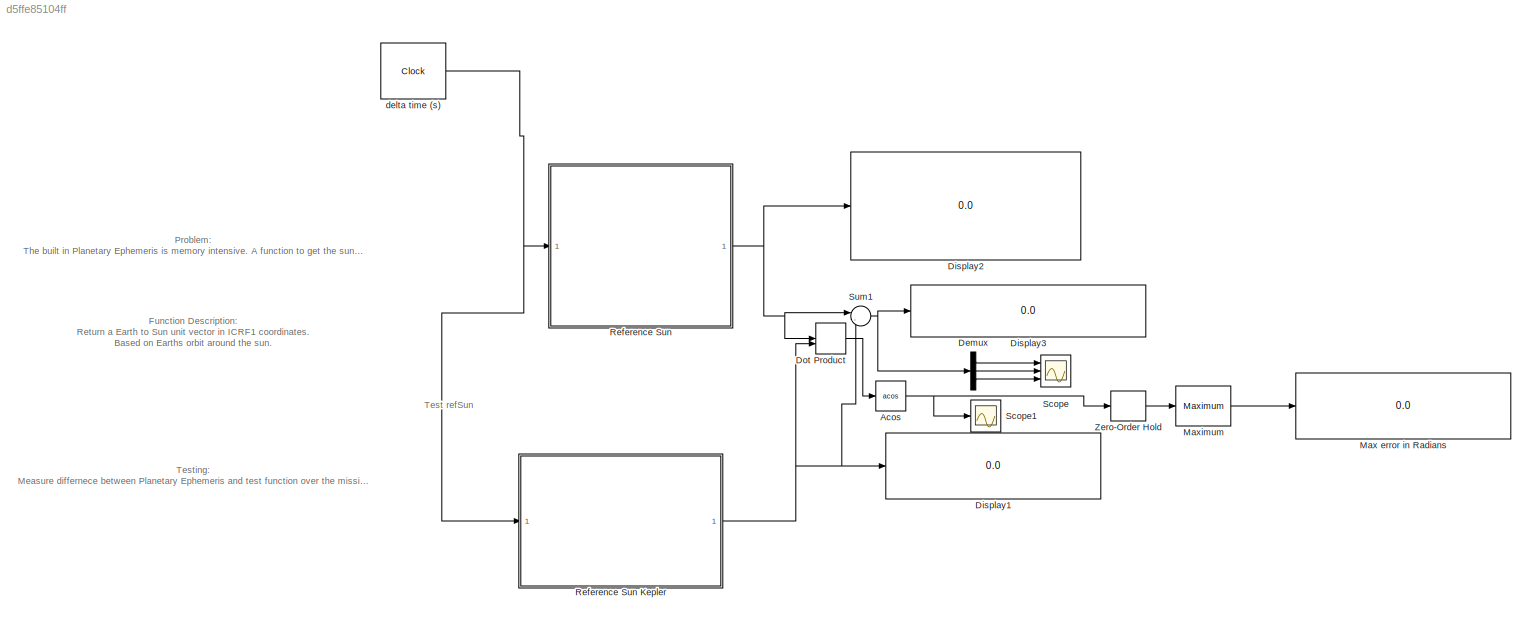
MODEL slx_d5ffe85104ff
KIND model
CONFIG AbsTol = auto
CONFIG EnableMultiTasking = off
CONFIG FixedStep = 1000
CONFIG MaxStep = auto
CONFIG MinStep = auto
CONFIG RelTol = 1e-3
CONFIG SampleTimeConstraint = Unconstrained
CONFIG Solver = FixedStepDiscrete
CONFIG SolverName = FixedStepDiscrete
CONFIG StartTime = 0
CONFIG StopTime = init.S_T*20
BLOCK [Trigonometry] Acos
  Operator = acos
  Ports = [1, 1]
BLOCK [Demux] Demux
  DisplayOption = bar
  Outputs = 3
  Ports = [1, 3]
BLOCK [Display] Display1
  Decimation = 1
  Ports = [1]
BLOCK [Display] Display2
  Decimation = 1
  Format = long
  Ports = [1]
BLOCK [Display] Display3
  Decimation = 1
  Ports = [1]
BLOCK [DotProduct] Dot Product
  OutDataTypeStr = Inherit: Inherit via internal rule
BLOCK [Display] Max error in Radians
  Decimation = 1
  Ports = [1]
BLOCK [Reference] Maximum  REF=dspstat3/Maximum
  Ports = [1, 1]
  SourceBlock = dspstat3/Maximum
  SourceProductBaseCode = DS
  SourceProductName = DSP System Toolbox
  SourceType = Maximum
  UserDataPersistent = on
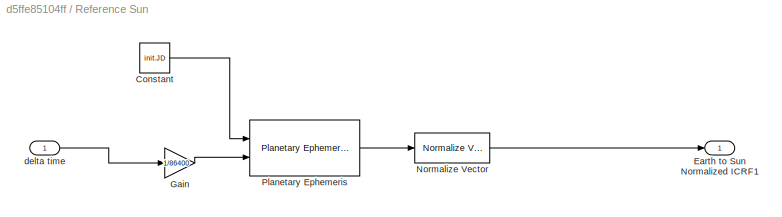
BLOCK [SubSystem] Reference Sun 
  Ports = [1, 1]
  RequestExecContextInheritance = off
BLOCK [Constant] Reference Sun /Constant
  Value = init.JD
BLOCK [Outport] Reference Sun /Earth to Sun Normalized ICRF1
  IconDisplay = Port number
BLOCK [Gain] Reference Sun /Gain
  Gain = 1/86400
  OutDataTypeStr = Inherit: Inherit via internal rule
  ParamDataTypeStr = Inherit: Inherit via internal rule
  SaturateOnIntegerOverflow = off
BLOCK [Reference] Reference Sun /Normalize Vector  REF=vrlib/Utilities/Normalize Vector
  Ports = [1, 1]
  SourceBlock = vrlib/Utilities/Normalize Vector
  SourceProductBaseCode = VR
  SourceProductName = Simulink 3D Animation
  SourceType = Normalize Vector
BLOCK [Reference] Reference Sun /Planetary Ephemeris  REF=aerolibcelestial/Planetary Ephemeris
  Ports = [2, 1]
  SourceBlock = aerolibcelestial/Planetary Ephemeris
  SourceProductBaseCode = AE
  SourceProductName = Aerospace Blockset
  SourceType = PlanetaryEphemeris
BLOCK [Inport] Reference Sun /delta time
  IconDisplay = Port number
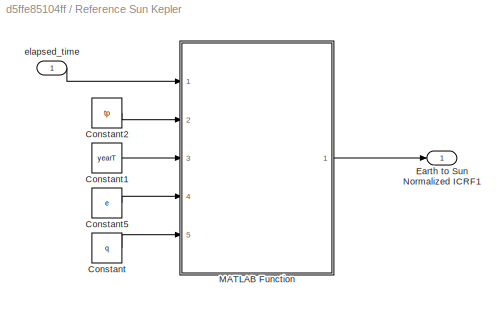
BLOCK [SubSystem] Reference Sun Kepler
  Ports = [1, 1]
  RequestExecContextInheritance = off
BLOCK [Constant] Reference Sun Kepler/Constant
  Value = q
BLOCK [Constant] Reference Sun Kepler/Constant1
  Value = yearT
BLOCK [Constant] Reference Sun Kepler/Constant2
  Value = tp
BLOCK [Constant] Reference Sun Kepler/Constant5
  Value = e
BLOCK [Outport] Reference Sun Kepler/Earth to Sun Normalized ICRF1
  IconDisplay = Port number
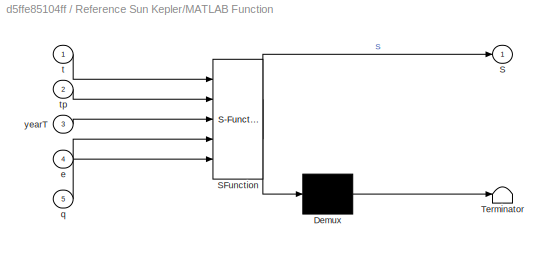
BLOCK [SubSystem] Reference Sun Kepler/MATLAB Function
  ErrorFcn = Stateflow.Translate.translate
  PermitHierarchicalResolution = ExplicitOnly
  Ports = [5, 1]
  RequestExecContextInheritance = off
  SFBlockType = MATLAB Function
  TreatAsAtomicUnit = on
BLOCK [Demux] Reference Sun Kepler/MATLAB Function/ Demux 
  Outputs = 1
  Ports = [1, 1]
BLOCK [S-Function] Reference Sun Kepler/MATLAB Function/ SFunction 
  EnableBusSupport = on
  FunctionName = sf_sfun
  PortCounts = [5 2]
  Ports = [5, 2]
  SFcnIsStateOwnerBlock = off
  SFunctionDeploymentMode = off
  Tag = Stateflow S-Function refSuntest 2
BLOCK [Terminator] Reference Sun Kepler/MATLAB Function/ Terminator 
BLOCK [Outport] Reference Sun Kepler/MATLAB Function/S
  IconDisplay = Port number
BLOCK [Inport] Reference Sun Kepler/MATLAB Function/e
  IconDisplay = Port number
  Port = 4
BLOCK [Inport] Reference Sun Kepler/MATLAB Function/q
  IconDisplay = Port number
  Port = 5
BLOCK [Inport] Reference Sun Kepler/MATLAB Function/t
  IconDisplay = Port number
BLOCK [Inport] Reference Sun Kepler/MATLAB Function/tp
  IconDisplay = Port number
  Port = 2
BLOCK [Inport] Reference Sun Kepler/MATLAB Function/yearT
  IconDisplay = Port number
  Port = 3
BLOCK [Inport] Reference Sun Kepler/elapsed_time
  IconDisplay = Port number
BLOCK [Scope] Scope
  Floating = off
  NumInputPorts = 3
  Ports = [3]
  ScopeSpecificationString = Simulink.scopes.TimeScopeBlockCfg('CurrentConfiguration', extmgr.ConfigurationSet(extmgr.Configuration('Core','General UI',true),extmgr.Configuration('Core','Source UI',true),extmgr.Configuration('Sources','WiredSimulink',true),extmgr.Configuration('Visuals','Time Domain',true,'SerializedDisplays',{struct('MinYLimReal','-0.00025','MaxYLimReal','0.00069','YLabelReal','','MinYLimMag','0.00000','MaxY...<+2750ch>
BLOCK [Scope] Scope1
  Floating = off
  NumInputPorts = 1
  Ports = [1]
  ScopeSpecificationString = Simulink.scopes.TimeScopeBlockCfg('CurrentConfiguration', extmgr.ConfigurationSet(extmgr.Configuration('Core','General UI',true),extmgr.Configuration('Core','Source UI',true),extmgr.Configuration('Sources','WiredSimulink',true,'DataLoggingVariableName','ScopeData1'),extmgr.Configuration('Visuals','Time Domain',true,'SerializedDisplays',{struct('MinYLimReal','-0.00008','MaxYLimReal','0.00078','YLab...<+1363ch>
BLOCK [Sum] Sum1
  IconShape = round
  InputSameDT = off
  Inputs = |-+
  OutDataTypeStr = Inherit: Inherit via internal rule
  Ports = [2, 1]
  SaturateOnIntegerOverflow = off
BLOCK [ZeroOrderHold] Zero-Order Hold
  SampleTime = -1
BLOCK [Clock] delta time (s)
  DisplayTime = on
ANNOTATION (root): Function Description: Return a Earth to Sun unit vector in ICRF1 coordinates. Based on Earths orbit around the sun.
ANNOTATION (root): Problem: The built in Planetary Ephemeris is memory intensive. A function to get the sun to earth refernce vector need to be tested to ensure accuracy and memory
ANNOTATION (root): Testing: Measure differnece between Planetary Ephemeris and test function over the mission timeline, all errors should be much less than one dergree off.
ANNOTATION (root): Test refSun
NET Acos:1 -> Scope1:1, Zero-Order Hold:1
LINE Demux:1 -> Scope:1
LINE Demux:2 -> Scope:2
LINE Demux:3 -> Scope:3
LINE Dot Product:1 -> Acos:1
LINE Maximum:1 -> Max error in Radians:1
LINE Reference Sun /Constant:1 -> Reference Sun /Planetary Ephemeris:1
LINE Reference Sun /Gain:1 -> Reference Sun /Planetary Ephemeris:2
LINE Reference Sun /Normalize Vector:1 -> Reference Sun /Earth to Sun Normalized ICRF1:1
LINE Reference Sun /Planetary Ephemeris:1 -> Reference Sun /Normalize Vector:1
LINE Reference Sun /delta time:1 -> Reference Sun /Gain:1
NET Reference Sun :1 -> Display2:1, Dot Product:1, Sum1:1
LINE Reference Sun Kepler/Constant1:1 -> Reference Sun Kepler/MATLAB Function:3
LINE Reference Sun Kepler/Constant2:1 -> Reference Sun Kepler/MATLAB Function:2
LINE Reference Sun Kepler/Constant5:1 -> Reference Sun Kepler/MATLAB Function:4
LINE Reference Sun Kepler/Constant:1 -> Reference Sun Kepler/MATLAB Function:5
LINE Reference Sun Kepler/MATLAB Function:1 -> Reference Sun Kepler/Earth to Sun Normalized ICRF1:1
LINE Reference Sun Kepler/elapsed_time:1 -> Reference Sun Kepler/MATLAB Function:1
NET Reference Sun Kepler:1 -> Display1:1, Dot Product:2, Sum1:2
NET Sum1:1 -> Demux:1, Display3:1
LINE Zero-Order Hold:1 -> Maximum:1
NET delta time (s):1 -> Reference Sun :1, Reference Sun Kepler:1
note: NET lines group one-source signal fan-out (src -> all destinations, sorted); 1:1 wires keep LINE
CHART Reference Sun Kepler/MATLAB Function states=1 transitions=1
  STATE_LABEL 'eML_blk_kernel()'
  STATE_LABEL 'SCRIPT:\nfunction S = fcn(t,tp,yearT,e,q)\n%sds\nS= refSunK(t,tp,yearT,e,q);\n\n'
